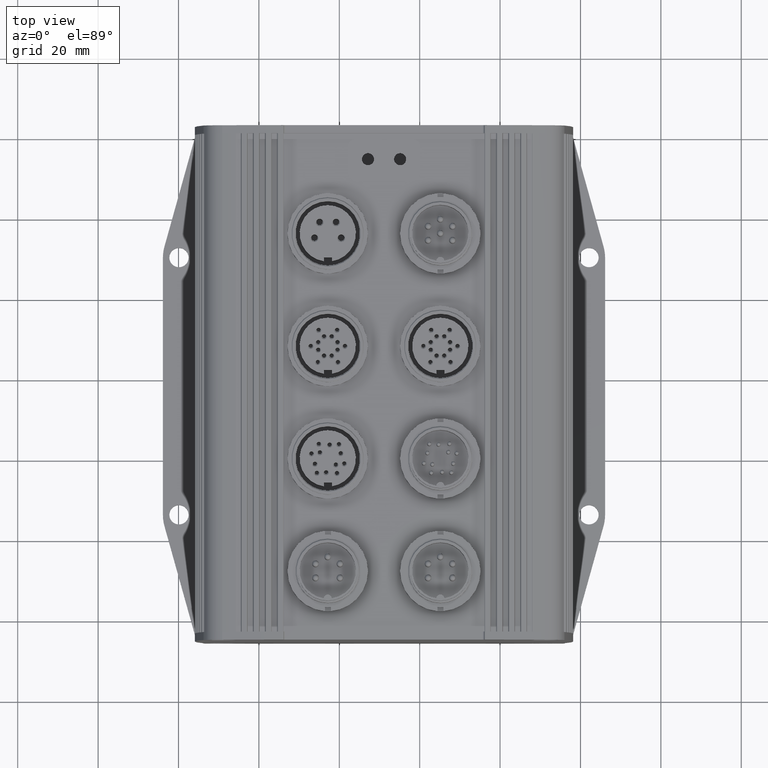
[diagram: clean part render]
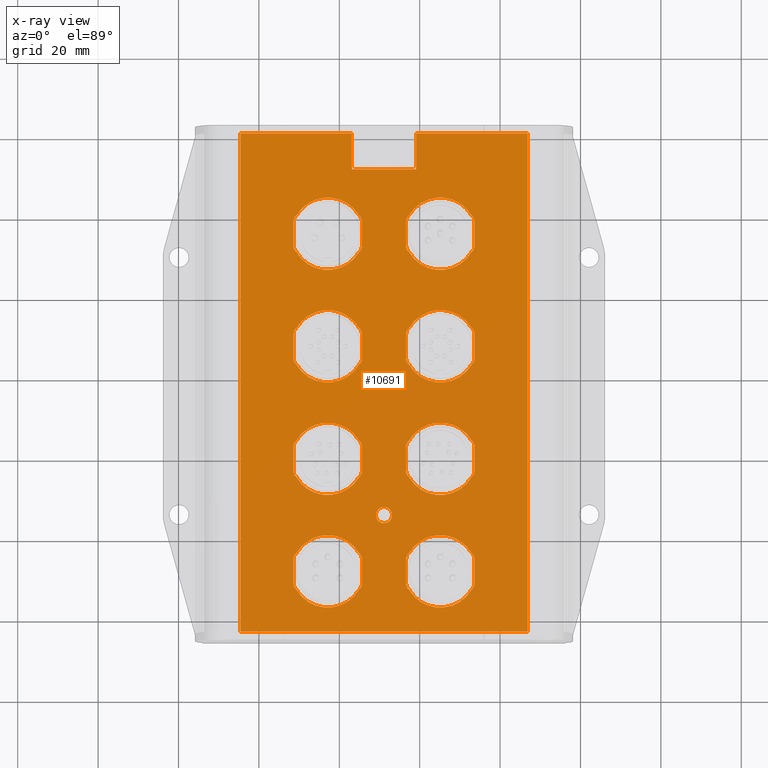
[diagram: x-ray — body ghosted, one internal face saturated and labeled with its STEP entity id]
A machine part, top view, then the same camera in x-ray: the body is ghosted and one INTERNAL B-rep face — a face not visible from any outside direction — is saturated and labeled: STEP entity #10691.
In plain terms, the highlighted planar face has unit normal (0, 0, 1).
Its self-contained STEP definition (entity closure, byte-faithful):
#967=CARTESIAN_POINT('',(-2.0,-19.999999999999972,27.049533612553901));
#968=VERTEX_POINT('',#967);
#984=CARTESIAN_POINT('',(2.0,-19.999999999999972,27.049533612553901));
#985=VERTEX_POINT('',#984);
#992=CARTESIAN_POINT('',(0.0,-19.999999999999972,27.049533612553901));
#993=DIRECTION('',(0.0,0.0,1.0));
#994=DIRECTION('',(-1.0,0.0,0.0));
#995=AXIS2_PLACEMENT_3D('',#992,#993,#994);
#996=CIRCLE('',#995,2.0);
#997=EDGE_CURVE('',#968,#985,#996,.T.);
#1008=CARTESIAN_POINT('',(0.0,-19.999999999999972,27.049533612553901));
#1009=DIRECTION('',(0.0,0.0,1.0));
#1010=DIRECTION('',(-1.0,0.0,0.0));
#1011=AXIS2_PLACEMENT_3D('',#1008,#1009,#1010);
#1012=CIRCLE('',#1011,2.0);
#1013=EDGE_CURVE('',#985,#968,#1012,.T.);
#1031=CARTESIAN_POINT('',(6.233730823893669,-29.451916548230358,27.049533612553901));
#1032=VERTEX_POINT('',#1031);
#1033=CARTESIAN_POINT('',(5.499999999999982,-31.0,27.049533612553901));
#1034=VERTEX_POINT('',#1033);
#1035=CARTESIAN_POINT('',(7.499999999999982,-31.0,27.049533612553901));
#1036=DIRECTION('',(0.0,0.0,1.0));
#1037=DIRECTION('',(1.0,0.0,0.0));
#1038=AXIS2_PLACEMENT_3D('',#1035,#1036,#1037);
#1039=CIRCLE('',#1038,2.0);
#1040=EDGE_CURVE('',#1032,#1034,#1039,.T.);
#1073=CARTESIAN_POINT('',(5.499999999999982,-37.0,27.049533612553901));
#1074=VERTEX_POINT('',#1073);
#1075=CARTESIAN_POINT('',(5.499999999999982,-31.0,27.049533612553901));
#1076=DIRECTION('',(0.0,-1.0,0.0));
#1077=VECTOR('',#1076,6.0);
#1078=LINE('',#1075,#1077);
#1079=EDGE_CURVE('',#1034,#1074,#1078,.T.);
#1104=CARTESIAN_POINT('',(6.233730823893669,-38.548083451769656,27.049533612553901));
#1105=VERTEX_POINT('',#1104);
#1106=CARTESIAN_POINT('',(7.499999999999982,-37.0,27.049533612553901));
#1107=DIRECTION('',(0.0,0.0,1.0));
#1108=DIRECTION('',(1.0,0.0,0.0));
#1109=AXIS2_PLACEMENT_3D('',#1106,#1107,#1108);
#1110=CIRCLE('',#1109,2.0);
#1111=EDGE_CURVE('',#1074,#1105,#1110,.T.);
#1137=CARTESIAN_POINT('',(21.766269176106302,-38.548083451769642,27.049533612553901));
#1138=VERTEX_POINT('',#1137);
#1139=CARTESIAN_POINT('',(13.999999999999982,-34.0,27.049533612553901));
#1140=DIRECTION('',(0.0,0.0,1.0));
#1141=DIRECTION('',(1.0,0.0,0.0));
#1142=AXIS2_PLACEMENT_3D('',#1139,#1140,#1141);
#1143=CIRCLE('',#1142,9.0);
#1144=EDGE_CURVE('',#1105,#1138,#1143,.T.);
#1170=CARTESIAN_POINT('',(22.499999999999982,-37.0,27.049533612553901));
#1171=VERTEX_POINT('',#1170);
#1172=CARTESIAN_POINT('',(20.499999999999982,-37.0,27.049533612553901));
#1173=DIRECTION('',(0.0,0.0,1.0));
#1174=DIRECTION('',(1.0,0.0,0.0));
#1175=AXIS2_PLACEMENT_3D('',#1172,#1173,#1174);
#1176=CIRCLE('',#1175,2.0);
#1177=EDGE_CURVE('',#1138,#1171,#1176,.T.);
#1203=CARTESIAN_POINT('',(22.499999999999982,-31.0,27.049533612553901));
#1204=VERTEX_POINT('',#1203);
#1205=CARTESIAN_POINT('',(22.499999999999982,-37.0,27.049533612553901));
#1206=DIRECTION('',(0.0,1.0,0.0));
#1207=VECTOR('',#1206,6.0);
#1208=LINE('',#1205,#1207);
#1209=EDGE_CURVE('',#1171,#1204,#1208,.T.);
#1234=CARTESIAN_POINT('',(21.766269176106295,-29.451916548230344,27.049533612553901));
#1235=VERTEX_POINT('',#1234);
#1236=CARTESIAN_POINT('',(20.499999999999982,-31.0,27.049533612553901));
#1237=DIRECTION('',(0.0,0.0,1.0));
#1238=DIRECTION('',(1.0,0.0,0.0));
#1239=AXIS2_PLACEMENT_3D('',#1236,#1237,#1238);
#1240=CIRCLE('',#1239,2.0);
#1241=EDGE_CURVE('',#1204,#1235,#1240,.T.);
#1267=CARTESIAN_POINT('',(13.999999999999982,-34.0,27.049533612553901));
#1268=DIRECTION('',(0.0,0.0,1.0));
#1269=DIRECTION('',(1.0,0.0,0.0));
#1270=AXIS2_PLACEMENT_3D('',#1267,#1268,#1269);
#1271=CIRCLE('',#1270,9.0);
#1272=EDGE_CURVE('',#1235,#1032,#1271,.T.);
#1291=CARTESIAN_POINT('',(-21.766269176106331,-29.451916548230358,27.049533612553901));
#1292=VERTEX_POINT('',#1291);
#1293=CARTESIAN_POINT('',(-22.500000000000018,-31.0,27.049533612553901));
#1294=VERTEX_POINT('',#1293);
#1295=CARTESIAN_POINT('',(-20.500000000000018,-31.0,27.049533612553901));
#1296=DIRECTION('',(0.0,0.0,1.0));
#1297=DIRECTION('',(1.0,0.0,0.0));
#1298=AXIS2_PLACEMENT_3D('',#1295,#1296,#1297);
#1299=CIRCLE('',#1298,2.0);
#1300=EDGE_CURVE('',#1292,#1294,#1299,.T.);
#1333=CARTESIAN_POINT('',(-22.500000000000018,-37.0,27.049533612553901));
#1334=VERTEX_POINT('',#1333);
#1335=CARTESIAN_POINT('',(-22.500000000000018,-31.0,27.049533612553901));
#1336=DIRECTION('',(0.0,-1.0,0.0));
#1337=VECTOR('',#1336,6.0);
#1338=LINE('',#1335,#1337);
#1339=EDGE_CURVE('',#1294,#1334,#1338,.T.);
#1364=CARTESIAN_POINT('',(-21.766269176106331,-38.548083451769656,27.049533612553901));
#1365=VERTEX_POINT('',#1364);
#1366=CARTESIAN_POINT('',(-20.500000000000018,-37.0,27.049533612553901));
#1367=DIRECTION('',(0.0,0.0,1.0));
#1368=DIRECTION('',(1.0,0.0,0.0));
#1369=AXIS2_PLACEMENT_3D('',#1366,#1367,#1368);
#1370=CIRCLE('',#1369,2.0);
#1371=EDGE_CURVE('',#1334,#1365,#1370,.T.);
#1397=CARTESIAN_POINT('',(-6.233730823893699,-38.548083451769642,27.049533612553901));
#1398=VERTEX_POINT('',#1397);
#1399=CARTESIAN_POINT('',(-14.000000000000018,-34.0,27.049533612553901));
#1400=DIRECTION('',(0.0,0.0,1.0));
#1401=DIRECTION('',(1.0,0.0,0.0));
#1402=AXIS2_PLACEMENT_3D('',#1399,#1400,#1401);
#1403=CIRCLE('',#1402,9.0);
#1404=EDGE_CURVE('',#1365,#1398,#1403,.T.);
#1430=CARTESIAN_POINT('',(-5.500000000000019,-37.0,27.049533612553901));
#1431=VERTEX_POINT('',#1430);
#1432=CARTESIAN_POINT('',(-7.500000000000019,-37.0,27.049533612553901));
#1433=DIRECTION('',(0.0,0.0,1.0));
#1434=DIRECTION('',(1.0,0.0,0.0));
#1435=AXIS2_PLACEMENT_3D('',#1432,#1433,#1434);
#1436=CIRCLE('',#1435,2.0);
#1437=EDGE_CURVE('',#1398,#1431,#1436,.T.);
#1463=CARTESIAN_POINT('',(-5.500000000000019,-31.0,27.049533612553901));
#1464=VERTEX_POINT('',#1463);
#1465=CARTESIAN_POINT('',(-5.500000000000019,-37.0,27.049533612553901));
#1466=DIRECTION('',(0.0,1.0,0.0));
#1467=VECTOR('',#1466,6.0);
#1468=LINE('',#1465,#1467);
#1469=EDGE_CURVE('',#1431,#1464,#1468,.T.);
#1494=CARTESIAN_POINT('',(-6.233730823893706,-29.451916548230344,27.049533612553901));
#1495=VERTEX_POINT('',#1494);
#1496=CARTESIAN_POINT('',(-7.500000000000019,-31.0,27.049533612553901));
#1497=DIRECTION('',(0.0,0.0,1.0));
#1498=DIRECTION('',(1.0,0.0,0.0));
#1499=AXIS2_PLACEMENT_3D('',#1496,#1497,#1498);
#1500=CIRCLE('',#1499,2.0);
#1501=EDGE_CURVE('',#1464,#1495,#1500,.T.);
#1527=CARTESIAN_POINT('',(-14.000000000000018,-34.0,27.049533612553901));
#1528=DIRECTION('',(0.0,0.0,1.0));
#1529=DIRECTION('',(1.0,0.0,0.0));
#1530=AXIS2_PLACEMENT_3D('',#1527,#1528,#1529);
#1531=CIRCLE('',#1530,9.0);
#1532=EDGE_CURVE('',#1495,#1292,#1531,.T.);
#1551=CARTESIAN_POINT('',(6.233730823893673,-1.451916548230358,27.049533612553901));
#1552=VERTEX_POINT('',#1551);
#1553=CARTESIAN_POINT('',(5.499999999999986,-3.0,27.049533612553901));
#1554=VERTEX_POINT('',#1553);
#1555=CARTESIAN_POINT('',(7.499999999999986,-3.0,27.049533612553901));
#1556=DIRECTION('',(0.0,0.0,1.0));
#1557=DIRECTION('',(1.0,0.0,0.0));
#1558=AXIS2_PLACEMENT_3D('',#1555,#1556,#1557);
#1559=CIRCLE('',#1558,2.0);
#1560=EDGE_CURVE('',#1552,#1554,#1559,.T.);
#1593=CARTESIAN_POINT('',(5.499999999999986,-9.0,27.049533612553901));
#1594=VERTEX_POINT('',#1593);
#1595=CARTESIAN_POINT('',(5.499999999999986,-3.0,27.049533612553901));
#1596=DIRECTION('',(0.0,-1.0,0.0));
#1597=VECTOR('',#1596,6.0);
#1598=LINE('',#1595,#1597);
#1599=EDGE_CURVE('',#1554,#1594,#1598,.T.);
#1624=CARTESIAN_POINT('',(6.233730823893673,-10.548083451769656,27.049533612553901));
#1625=VERTEX_POINT('',#1624);
#1626=CARTESIAN_POINT('',(7.499999999999986,-9.0,27.049533612553901));
#1627=DIRECTION('',(0.0,0.0,1.0));
#1628=DIRECTION('',(1.0,0.0,0.0));
#1629=AXIS2_PLACEMENT_3D('',#1626,#1627,#1628);
#1630=CIRCLE('',#1629,2.0);
#1631=EDGE_CURVE('',#1594,#1625,#1630,.T.);
#1657=CARTESIAN_POINT('',(21.766269176106306,-10.548083451769642,27.049533612553901));
#1658=VERTEX_POINT('',#1657);
#1659=CARTESIAN_POINT('',(13.999999999999986,-6.0,27.049533612553901));
#1660=DIRECTION('',(0.0,0.0,1.0));
#1661=DIRECTION('',(1.0,0.0,0.0));
#1662=AXIS2_PLACEMENT_3D('',#1659,#1660,#1661);
#1663=CIRCLE('',#1662,9.0);
#1664=EDGE_CURVE('',#1625,#1658,#1663,.T.);
#1690=CARTESIAN_POINT('',(22.499999999999986,-9.0,27.049533612553901));
#1691=VERTEX_POINT('',#1690);
#1692=CARTESIAN_POINT('',(20.499999999999986,-9.0,27.049533612553901));
#1693=DIRECTION('',(0.0,0.0,1.0));
#1694=DIRECTION('',(1.0,0.0,0.0));
#1695=AXIS2_PLACEMENT_3D('',#1692,#1693,#1694);
#1696=CIRCLE('',#1695,2.0);
#1697=EDGE_CURVE('',#1658,#1691,#1696,.T.);
#1723=CARTESIAN_POINT('',(22.499999999999986,-3.0,27.049533612553901));
#1724=VERTEX_POINT('',#1723);
#1725=CARTESIAN_POINT('',(22.499999999999986,-9.0,27.049533612553901));
#1726=DIRECTION('',(0.0,1.0,0.0));
#1727=VECTOR('',#1726,6.0);
#1728=LINE('',#1725,#1727);
#1729=EDGE_CURVE('',#1691,#1724,#1728,.T.);
#1754=CARTESIAN_POINT('',(21.766269176106299,-1.451916548230344,27.049533612553901));
#1755=VERTEX_POINT('',#1754);
#1756=CARTESIAN_POINT('',(20.499999999999986,-3.0,27.049533612553901));
#1757=DIRECTION('',(0.0,0.0,1.0));
#1758=DIRECTION('',(1.0,0.0,0.0));
#1759=AXIS2_PLACEMENT_3D('',#1756,#1757,#1758);
#1760=CIRCLE('',#1759,2.0);
#1761=EDGE_CURVE('',#1724,#1755,#1760,.T.);
#1787=CARTESIAN_POINT('',(13.999999999999986,-6.0,27.049533612553901));
#1788=DIRECTION('',(0.0,0.0,1.0));
#1789=DIRECTION('',(1.0,0.0,0.0));
#1790=AXIS2_PLACEMENT_3D('',#1787,#1788,#1789);
#1791=CIRCLE('',#1790,9.0);
#1792=EDGE_CURVE('',#1755,#1552,#1791,.T.);
#1811=CARTESIAN_POINT('',(-21.766269176106327,-1.451916548230358,27.049533612553901));
#1812=VERTEX_POINT('',#1811);
#1813=CARTESIAN_POINT('',(-22.500000000000014,-3.0,27.049533612553901));
#1814=VERTEX_POINT('',#1813);
#1815=CARTESIAN_POINT('',(-20.500000000000014,-3.0,27.049533612553901));
#1816=DIRECTION('',(0.0,0.0,1.0));
#1817=DIRECTION('',(1.0,0.0,0.0));
#1818=AXIS2_PLACEMENT_3D('',#1815,#1816,#1817);
#1819=CIRCLE('',#1818,2.0);
#1820=EDGE_CURVE('',#1812,#1814,#1819,.T.);
#1853=CARTESIAN_POINT('',(-22.500000000000014,-9.0,27.049533612553901));
#1854=VERTEX_POINT('',#1853);
#1855=CARTESIAN_POINT('',(-22.500000000000014,-3.0,27.049533612553901));
#1856=DIRECTION('',(0.0,-1.0,0.0));
#1857=VECTOR('',#1856,6.0);
#1858=LINE('',#1855,#1857);
#1859=EDGE_CURVE('',#1814,#1854,#1858,.T.);
#1884=CARTESIAN_POINT('',(-21.766269176106327,-10.548083451769656,27.049533612553901));
#1885=VERTEX_POINT('',#1884);
#1886=CARTESIAN_POINT('',(-20.500000000000014,-9.0,27.049533612553901));
#1887=DIRECTION('',(0.0,0.0,1.0));
#1888=DIRECTION('',(1.0,0.0,0.0));
#1889=AXIS2_PLACEMENT_3D('',#1886,#1887,#1888);
#1890=CIRCLE('',#1889,2.0);
#1891=EDGE_CURVE('',#1854,#1885,#1890,.T.);
#1917=CARTESIAN_POINT('',(-6.233730823893692,-10.548083451769642,27.049533612553901));
#1918=VERTEX_POINT('',#1917);
#1919=CARTESIAN_POINT('',(-14.000000000000012,-6.0,27.049533612553901));
#1920=DIRECTION('',(0.0,0.0,1.0));
#1921=DIRECTION('',(1.0,0.0,0.0));
#1922=AXIS2_PLACEMENT_3D('',#1919,#1920,#1921);
#1923=CIRCLE('',#1922,9.0);
#1924=EDGE_CURVE('',#1885,#1918,#1923,.T.);
#1950=CARTESIAN_POINT('',(-5.500000000000012,-9.0,27.049533612553901));
#1951=VERTEX_POINT('',#1950);
#1952=CARTESIAN_POINT('',(-7.500000000000012,-9.0,27.049533612553901));
#1953=DIRECTION('',(0.0,0.0,1.0));
#1954=DIRECTION('',(1.0,0.0,0.0));
#1955=AXIS2_PLACEMENT_3D('',#1952,#1953,#1954);
#1956=CIRCLE('',#1955,2.0);
#1957=EDGE_CURVE('',#1918,#1951,#1956,.T.);
#1983=CARTESIAN_POINT('',(-5.500000000000012,-3.0,27.049533612553901));
#1984=VERTEX_POINT('',#1983);
#1985=CARTESIAN_POINT('',(-5.500000000000012,-9.0,27.049533612553901));
#1986=DIRECTION('',(0.0,1.0,0.0));
#1987=VECTOR('',#1986,6.0);
#1988=LINE('',#1985,#1987);
#1989=EDGE_CURVE('',#1951,#1984,#1988,.T.);
#2014=CARTESIAN_POINT('',(-6.233730823893700,-1.451916548230344,27.049533612553901));
#2015=VERTEX_POINT('',#2014);
#2016=CARTESIAN_POINT('',(-7.500000000000012,-3.0,27.049533612553901));
#2017=DIRECTION('',(0.0,0.0,1.0));
#2018=DIRECTION('',(1.0,0.0,0.0));
#2019=AXIS2_PLACEMENT_3D('',#2016,#2017,#2018);
#2020=CIRCLE('',#2019,2.0);
#2021=EDGE_CURVE('',#1984,#2015,#2020,.T.);
#2047=CARTESIAN_POINT('',(-14.000000000000012,-6.0,27.049533612553901));
#2048=DIRECTION('',(0.0,0.0,1.0));
#2049=DIRECTION('',(1.0,0.0,0.0));
#2050=AXIS2_PLACEMENT_3D('',#2047,#2048,#2049);
#2051=CIRCLE('',#2050,9.0);
#2052=EDGE_CURVE('',#2015,#1812,#2051,.T.);
#2071=CARTESIAN_POINT('',(6.233730823893680,26.548083451769642,27.049533612553901));
#2072=VERTEX_POINT('',#2071);
#2073=CARTESIAN_POINT('',(5.499999999999993,25.0,27.049533612553901));
#2074=VERTEX_POINT('',#2073);
#2075=CARTESIAN_POINT('',(7.499999999999993,25.0,27.049533612553901));
#2076=DIRECTION('',(0.0,0.0,1.0));
#2077=DIRECTION('',(1.0,0.0,0.0));
#2078=AXIS2_PLACEMENT_3D('',#2075,#2076,#2077);
#2079=CIRCLE('',#2078,2.0);
#2080=EDGE_CURVE('',#2072,#2074,#2079,.T.);
#2113=CARTESIAN_POINT('',(5.499999999999993,19.0,27.049533612553901));
#2114=VERTEX_POINT('',#2113);
#2115=CARTESIAN_POINT('',(5.499999999999993,25.0,27.049533612553901));
#2116=DIRECTION('',(0.0,-1.0,0.0));
#2117=VECTOR('',#2116,6.0);
#2118=LINE('',#2115,#2117);
#2119=EDGE_CURVE('',#2074,#2114,#2118,.T.);
#2144=CARTESIAN_POINT('',(6.233730823893680,17.451916548230344,27.049533612553901));
#2145=VERTEX_POINT('',#2144);
#2146=CARTESIAN_POINT('',(7.499999999999993,19.0,27.049533612553901));
#2147=DIRECTION('',(0.0,0.0,1.0));
#2148=DIRECTION('',(1.0,0.0,0.0));
#2149=AXIS2_PLACEMENT_3D('',#2146,#2147,#2148);
#2150=CIRCLE('',#2149,2.0);
#2151=EDGE_CURVE('',#2114,#2145,#2150,.T.);
#2177=CARTESIAN_POINT('',(21.766269176106313,17.451916548230358,27.049533612553901));
#2178=VERTEX_POINT('',#2177);
#2179=CARTESIAN_POINT('',(13.999999999999993,22.0,27.049533612553901));
#2180=DIRECTION('',(0.0,0.0,1.0));
#2181=DIRECTION('',(1.0,0.0,0.0));
#2182=AXIS2_PLACEMENT_3D('',#2179,#2180,#2181);
#2183=CIRCLE('',#2182,9.0);
#2184=EDGE_CURVE('',#2145,#2178,#2183,.T.);
#2210=CARTESIAN_POINT('',(22.499999999999993,19.0,27.049533612553901));
#2211=VERTEX_POINT('',#2210);
#2212=CARTESIAN_POINT('',(20.499999999999993,19.0,27.049533612553901));
#2213=DIRECTION('',(0.0,0.0,1.0));
#2214=DIRECTION('',(1.0,0.0,0.0));
#2215=AXIS2_PLACEMENT_3D('',#2212,#2213,#2214);
#2216=CIRCLE('',#2215,2.0);
#2217=EDGE_CURVE('',#2178,#2211,#2216,.T.);
#2243=CARTESIAN_POINT('',(22.499999999999993,25.0,27.049533612553901));
#2244=VERTEX_POINT('',#2243);
#2245=CARTESIAN_POINT('',(22.499999999999993,19.0,27.049533612553901));
#2246=DIRECTION('',(0.0,1.0,0.0));
#2247=VECTOR('',#2246,6.0);
#2248=LINE('',#2245,#2247);
#2249=EDGE_CURVE('',#2211,#2244,#2248,.T.);
#2274=CARTESIAN_POINT('',(21.766269176106306,26.548083451769656,27.049533612553901));
#2275=VERTEX_POINT('',#2274);
#2276=CARTESIAN_POINT('',(20.499999999999993,25.0,27.049533612553901));
#2277=DIRECTION('',(0.0,0.0,1.0));
#2278=DIRECTION('',(1.0,0.0,0.0));
#2279=AXIS2_PLACEMENT_3D('',#2276,#2277,#2278);
#2280=CIRCLE('',#2279,2.0);
#2281=EDGE_CURVE('',#2244,#2275,#2280,.T.);
#2307=CARTESIAN_POINT('',(13.999999999999993,22.0,27.049533612553901));
#2308=DIRECTION('',(0.0,0.0,1.0));
#2309=DIRECTION('',(1.0,0.0,0.0));
#2310=AXIS2_PLACEMENT_3D('',#2307,#2308,#2309);
#2311=CIRCLE('',#2310,9.0);
#2312=EDGE_CURVE('',#2275,#2072,#2311,.T.);
#2331=CARTESIAN_POINT('',(-21.766269176106320,26.548083451769642,27.049533612553901));
#2332=VERTEX_POINT('',#2331);
#2333=CARTESIAN_POINT('',(-22.500000000000007,25.0,27.049533612553901));
#2334=VERTEX_POINT('',#2333);
#2335=CARTESIAN_POINT('',(-20.500000000000007,25.0,27.049533612553901));
#2336=DIRECTION('',(0.0,0.0,1.0));
#2337=DIRECTION('',(1.0,0.0,0.0));
#2338=AXIS2_PLACEMENT_3D('',#2335,#2336,#2337);
#2339=CIRCLE('',#2338,2.0);
#2340=EDGE_CURVE('',#2332,#2334,#2339,.T.);
#2373=CARTESIAN_POINT('',(-22.500000000000007,19.0,27.049533612553901));
#2374=VERTEX_POINT('',#2373);
#2375=CARTESIAN_POINT('',(-22.500000000000007,25.0,27.049533612553901));
#2376=DIRECTION('',(0.0,-1.0,0.0));
#2377=VECTOR('',#2376,6.0);
#2378=LINE('',#2375,#2377);
#2379=EDGE_CURVE('',#2334,#2374,#2378,.T.);
#2404=CARTESIAN_POINT('',(-21.766269176106320,17.451916548230344,27.049533612553901));
#2405=VERTEX_POINT('',#2404);
#2406=CARTESIAN_POINT('',(-20.500000000000007,19.0,27.049533612553901));
#2407=DIRECTION('',(0.0,0.0,1.0));
#2408=DIRECTION('',(1.0,0.0,0.0));
#2409=AXIS2_PLACEMENT_3D('',#2406,#2407,#2408);
#2410=CIRCLE('',#2409,2.0);
#2411=EDGE_CURVE('',#2374,#2405,#2410,.T.);
#2437=CARTESIAN_POINT('',(-6.233730823893686,17.451916548230358,27.049533612553901));
#2438=VERTEX_POINT('',#2437);
#2439=CARTESIAN_POINT('',(-14.000000000000007,22.0,27.049533612553901));
#2440=DIRECTION('',(0.0,0.0,1.0));
#2441=DIRECTION('',(1.0,0.0,0.0));
#2442=AXIS2_PLACEMENT_3D('',#2439,#2440,#2441);
#2443=CIRCLE('',#2442,9.0);
#2444=EDGE_CURVE('',#2405,#2438,#2443,.T.);
#2470=CARTESIAN_POINT('',(-5.500000000000006,19.0,27.049533612553901));
#2471=VERTEX_POINT('',#2470);
#2472=CARTESIAN_POINT('',(-7.500000000000006,19.0,27.049533612553901));
#2473=DIRECTION('',(0.0,0.0,1.0));
#2474=DIRECTION('',(1.0,0.0,0.0));
#2475=AXIS2_PLACEMENT_3D('',#2472,#2473,#2474);
#2476=CIRCLE('',#2475,2.0);
#2477=EDGE_CURVE('',#2438,#2471,#2476,.T.);
#2503=CARTESIAN_POINT('',(-5.500000000000006,25.0,27.049533612553901));
#2504=VERTEX_POINT('',#2503);
#2505=CARTESIAN_POINT('',(-5.500000000000006,19.0,27.049533612553901));
#2506=DIRECTION('',(0.0,1.0,0.0));
#2507=VECTOR('',#2506,6.0);
#2508=LINE('',#2505,#2507);
#2509=EDGE_CURVE('',#2471,#2504,#2508,.T.);
#2534=CARTESIAN_POINT('',(-6.233730823893693,26.548083451769656,27.049533612553901));
#2535=VERTEX_POINT('',#2534);
#2536=CARTESIAN_POINT('',(-7.500000000000006,25.0,27.049533612553901));
#2537=DIRECTION('',(0.0,0.0,1.0));
#2538=DIRECTION('',(1.0,0.0,0.0));
#2539=AXIS2_PLACEMENT_3D('',#2536,#2537,#2538);
#2540=CIRCLE('',#2539,2.0);
#2541=EDGE_CURVE('',#2504,#2535,#2540,.T.);
#2567=CARTESIAN_POINT('',(-14.000000000000007,22.0,27.049533612553901));
#2568=DIRECTION('',(0.0,0.0,1.0));
#2569=DIRECTION('',(1.0,0.0,0.0));
#2570=AXIS2_PLACEMENT_3D('',#2567,#2568,#2569);
#2571=CIRCLE('',#2570,9.0);
#2572=EDGE_CURVE('',#2535,#2332,#2571,.T.);
#2591=CARTESIAN_POINT('',(6.233730823893687,54.548083451769642,27.049533612553901));
#2592=VERTEX_POINT('',#2591);
#2593=CARTESIAN_POINT('',(5.500000000000000,53.0,27.049533612553901));
#2594=VERTEX_POINT('',#2593);
#2595=CARTESIAN_POINT('',(7.500000000000000,53.0,27.049533612553901));
#2596=DIRECTION('',(0.0,0.0,1.0));
#2597=DIRECTION('',(1.0,0.0,0.0));
#2598=AXIS2_PLACEMENT_3D('',#2595,#2596,#2597);
#2599=CIRCLE('',#2598,2.0);
#2600=EDGE_CURVE('',#2592,#2594,#2599,.T.);
#2633=CARTESIAN_POINT('',(5.500000000000000,47.0,27.049533612553901));
#2634=VERTEX_POINT('',#2633);
#2635=CARTESIAN_POINT('',(5.500000000000000,53.0,27.049533612553901));
#2636=DIRECTION('',(0.0,-1.0,0.0));
#2637=VECTOR('',#2636,6.0);
#2638=LINE('',#2635,#2637);
#2639=EDGE_CURVE('',#2594,#2634,#2638,.T.);
#2664=CARTESIAN_POINT('',(6.233730823893687,45.451916548230344,27.049533612553901));
#2665=VERTEX_POINT('',#2664);
#2666=CARTESIAN_POINT('',(7.500000000000000,47.0,27.049533612553901));
#2667=DIRECTION('',(0.0,0.0,1.0));
#2668=DIRECTION('',(1.0,0.0,0.0));
#2669=AXIS2_PLACEMENT_3D('',#2666,#2667,#2668);
#2670=CIRCLE('',#2669,2.0);
#2671=EDGE_CURVE('',#2634,#2665,#2670,.T.);
#2697=CARTESIAN_POINT('',(21.766269176106320,45.451916548230358,27.049533612553901));
#2698=VERTEX_POINT('',#2697);
#2699=CARTESIAN_POINT('',(14.0,50.0,27.049533612553901));
#2700=DIRECTION('',(0.0,0.0,1.0));
#2701=DIRECTION('',(1.0,0.0,0.0));
#2702=AXIS2_PLACEMENT_3D('',#2699,#2700,#2701);
#2703=CIRCLE('',#2702,9.0);
#2704=EDGE_CURVE('',#2665,#2698,#2703,.T.);
#2730=CARTESIAN_POINT('',(22.500000000000000,47.0,27.049533612553901));
#2731=VERTEX_POINT('',#2730);
#2732=CARTESIAN_POINT('',(20.500000000000000,47.0,27.049533612553901));
#2733=DIRECTION('',(0.0,0.0,1.0));
#2734=DIRECTION('',(1.0,0.0,0.0));
#2735=AXIS2_PLACEMENT_3D('',#2732,#2733,#2734);
#2736=CIRCLE('',#2735,2.0);
#2737=EDGE_CURVE('',#2698,#2731,#2736,.T.);
#2763=CARTESIAN_POINT('',(22.500000000000000,53.0,27.049533612553901));
#2764=VERTEX_POINT('',#2763);
#2765=CARTESIAN_POINT('',(22.500000000000000,47.0,27.049533612553901));
#2766=DIRECTION('',(0.0,1.0,0.0));
#2767=VECTOR('',#2766,6.0);
#2768=LINE('',#2765,#2767);
#2769=EDGE_CURVE('',#2731,#2764,#2768,.T.);
#2794=CARTESIAN_POINT('',(21.766269176106313,54.548083451769656,27.049533612553901));
#2795=VERTEX_POINT('',#2794);
#2796=CARTESIAN_POINT('',(20.500000000000000,53.0,27.049533612553901));
#2797=DIRECTION('',(0.0,0.0,1.0));
#2798=DIRECTION('',(1.0,0.0,0.0));
#2799=AXIS2_PLACEMENT_3D('',#2796,#2797,#2798);
#2800=CIRCLE('',#2799,2.0);
#2801=EDGE_CURVE('',#2764,#2795,#2800,.T.);
#2827=CARTESIAN_POINT('',(14.0,50.0,27.049533612553901));
#2828=DIRECTION('',(0.0,0.0,1.0));
#2829=DIRECTION('',(1.0,0.0,0.0));
#2830=AXIS2_PLACEMENT_3D('',#2827,#2828,#2829);
#2831=CIRCLE('',#2830,9.0);
#2832=EDGE_CURVE('',#2795,#2592,#2831,.T.);
#2851=CARTESIAN_POINT('',(-21.766269176106313,54.548083451769642,27.049533612553901));
#2852=VERTEX_POINT('',#2851);
#2853=CARTESIAN_POINT('',(-22.500000000000000,53.0,27.049533612553901));
#2854=VERTEX_POINT('',#2853);
#2855=CARTESIAN_POINT('',(-20.500000000000000,53.0,27.049533612553901));
#2856=DIRECTION('',(0.0,0.0,1.0));
#2857=DIRECTION('',(1.0,0.0,0.0));
#2858=AXIS2_PLACEMENT_3D('',#2855,#2856,#2857);
#2859=CIRCLE('',#2858,2.0);
#2860=EDGE_CURVE('',#2852,#2854,#2859,.T.);
#2893=CARTESIAN_POINT('',(-22.500000000000000,47.0,27.049533612553901));
#2894=VERTEX_POINT('',#2893);
#2895=CARTESIAN_POINT('',(-22.500000000000000,53.0,27.049533612553901));
#2896=DIRECTION('',(0.0,-1.0,0.0));
#2897=VECTOR('',#2896,6.0);
#2898=LINE('',#2895,#2897);
#2899=EDGE_CURVE('',#2854,#2894,#2898,.T.);
#2924=CARTESIAN_POINT('',(-21.766269176106313,45.451916548230344,27.049533612553901));
#2925=VERTEX_POINT('',#2924);
#2926=CARTESIAN_POINT('',(-20.500000000000000,47.0,27.049533612553901));
#2927=DIRECTION('',(0.0,0.0,1.0));
#2928=DIRECTION('',(1.0,0.0,0.0));
#2929=AXIS2_PLACEMENT_3D('',#2926,#2927,#2928);
#2930=CIRCLE('',#2929,2.0);
#2931=EDGE_CURVE('',#2894,#2925,#2930,.T.);
#2957=CARTESIAN_POINT('',(-6.233730823893680,45.451916548230358,27.049533612553901));
#2958=VERTEX_POINT('',#2957);
#2959=CARTESIAN_POINT('',(-14.0,50.0,27.049533612553901));
#2960=DIRECTION('',(0.0,0.0,1.0));
#2961=DIRECTION('',(1.0,0.0,0.0));
#2962=AXIS2_PLACEMENT_3D('',#2959,#2960,#2961);
#2963=CIRCLE('',#2962,9.0);
#2964=EDGE_CURVE('',#2925,#2958,#2963,.T.);
#2990=CARTESIAN_POINT('',(-5.500000000000000,47.0,27.049533612553901));
#2991=VERTEX_POINT('',#2990);
#2992=CARTESIAN_POINT('',(-7.500000000000000,47.0,27.049533612553901));
#2993=DIRECTION('',(0.0,0.0,1.0));
#2994=DIRECTION('',(1.0,0.0,0.0));
#2995=AXIS2_PLACEMENT_3D('',#2992,#2993,#2994);
#2996=CIRCLE('',#2995,2.0);
#2997=EDGE_CURVE('',#2958,#2991,#2996,.T.);
#3023=CARTESIAN_POINT('',(-5.500000000000000,53.0,27.049533612553901));
#3024=VERTEX_POINT('',#3023);
#3025=CARTESIAN_POINT('',(-5.500000000000000,47.0,27.049533612553901));
#3026=DIRECTION('',(0.0,1.0,0.0));
#3027=VECTOR('',#3026,6.0);
#3028=LINE('',#3025,#3027);
#3029=EDGE_CURVE('',#2991,#3024,#3028,.T.);
#3054=CARTESIAN_POINT('',(-6.233730823893687,54.548083451769656,27.049533612553901));
#3055=VERTEX_POINT('',#3054);
#3056=CARTESIAN_POINT('',(-7.500000000000000,53.0,27.049533612553901));
#3057=DIRECTION('',(0.0,0.0,1.0));
#3058=DIRECTION('',(1.0,0.0,0.0));
#3059=AXIS2_PLACEMENT_3D('',#3056,#3057,#3058);
#3060=CIRCLE('',#3059,2.0);
#3061=EDGE_CURVE('',#3024,#3055,#3060,.T.);
#3087=CARTESIAN_POINT('',(-14.0,50.0,27.049533612553901));
#3088=DIRECTION('',(0.0,0.0,1.0));
#3089=DIRECTION('',(1.0,0.0,0.0));
#3090=AXIS2_PLACEMENT_3D('',#3087,#3088,#3089);
#3091=CIRCLE('',#3090,9.0);
#3092=EDGE_CURVE('',#3055,#2852,#3091,.T.);
#3111=CARTESIAN_POINT('',(-7.984313483298442,66.000000000000014,27.049533612553901));
#3112=VERTEX_POINT('',#3111);
#3122=CARTESIAN_POINT('',(-7.984313483298442,75.000000000000028,27.049533612553901));
#3123=VERTEX_POINT('',#3122);
#3124=CARTESIAN_POINT('',(-7.984313483298442,75.000000000000028,27.049533612553901));
#3125=DIRECTION('',(0.0,-1.0,0.0));
#3126=VECTOR('',#3125,9.000000000000014);
#3127=LINE('',#3124,#3126);
#3128=EDGE_CURVE('',#3123,#3112,#3127,.T.);
#3204=CARTESIAN_POINT('',(7.984313483298443,66.000000000000014,27.049533612553901));
#3205=VERTEX_POINT('',#3204);
#3214=CARTESIAN_POINT('',(7.984313483298443,75.000000000000028,27.049533612553901));
#3215=VERTEX_POINT('',#3214);
#3223=CARTESIAN_POINT('',(7.984313483298443,66.000000000000014,27.049533612553901));
#3224=DIRECTION('',(0.0,1.0,0.0));
#3225=VECTOR('',#3224,9.000000000000014);
#3226=LINE('',#3223,#3225);
#3227=EDGE_CURVE('',#3205,#3215,#3226,.T.);
#3240=CARTESIAN_POINT('',(-7.984313483298442,66.000000000000014,27.049533612553901));
#3241=DIRECTION('',(1.0,0.0,0.0));
#3242=VECTOR('',#3241,15.968626966596885);
#3243=LINE('',#3240,#3242);
#3244=EDGE_CURVE('',#3112,#3205,#3243,.T.);
#4739=CARTESIAN_POINT('',(-35.750000000000000,75.000000000000028,27.049533612553901));
#4740=VERTEX_POINT('',#4739);
#4741=CARTESIAN_POINT('',(-7.984313483298442,75.000000000000028,27.049533612553901));
#4742=DIRECTION('',(-1.0,0.0,0.0));
#4743=VECTOR('',#4742,27.765686516701557);
#4744=LINE('',#4741,#4743);
#4745=EDGE_CURVE('',#3123,#4740,#4744,.T.);
#5598=CARTESIAN_POINT('',(35.750000000000000,75.000000000000028,27.049533612553901));
#5599=VERTEX_POINT('',#5598);
#5607=CARTESIAN_POINT('',(35.750000000000000,75.000000000000028,27.049533612553901));
#5608=DIRECTION('',(-1.0,0.0,0.0));
#5609=VECTOR('',#5608,27.765686516701557);
#5610=LINE('',#5607,#5609);
#5611=EDGE_CURVE('',#5599,#3215,#5610,.T.);
#8179=CARTESIAN_POINT('',(-35.750000000000000,-48.999999999999972,27.049533612553901));
#8180=VERTEX_POINT('',#8179);
#8188=CARTESIAN_POINT('',(35.750000000000000,-48.999999999999972,27.049533612553901));
#8189=VERTEX_POINT('',#8188);
#8190=CARTESIAN_POINT('',(-35.750000000000000,-48.999999999999972,27.049533612553901));
#8191=DIRECTION('',(1.0,0.0,0.0));
#8192=VECTOR('',#8191,71.500000000000000);
#8193=LINE('',#8190,#8192);
#8194=EDGE_CURVE('',#8180,#8189,#8193,.T.);
#10571=CARTESIAN_POINT('',(-35.750000000000000,75.000000000000028,27.049533612553901));
#10572=DIRECTION('',(0.0,-1.0,0.0));
#10573=VECTOR('',#10572,124.0);
#10574=LINE('',#10571,#10573);
#10575=EDGE_CURVE('',#4740,#8180,#10574,.T.);
#10587=CARTESIAN_POINT('',(-37.750000000000000,75.0,27.049533612553901));
#10588=DIRECTION('',(0.0,0.0,1.0));
#10589=DIRECTION('',(1.0,0.0,0.0));
#10590=AXIS2_PLACEMENT_3D('',#10587,#10588,#10589);
#10591=PLANE('',#10590);
#10592=ORIENTED_EDGE('',*,*,#3227,.T.);
#10593=ORIENTED_EDGE('',*,*,#5611,.F.);
#10594=CARTESIAN_POINT('',(35.750000000000000,-48.999999999999972,27.049533612553901));
#10595=DIRECTION('',(0.0,1.0,0.0));
#10596=VECTOR('',#10595,124.0);
#10597=LINE('',#10594,#10596);
#10598=EDGE_CURVE('',#8189,#5599,#10597,.T.);
#10599=ORIENTED_EDGE('',*,*,#10598,.F.);
#10600=ORIENTED_EDGE('',*,*,#8194,.F.);
#10601=ORIENTED_EDGE('',*,*,#10575,.F.);
#10602=ORIENTED_EDGE('',*,*,#4745,.F.);
#10603=ORIENTED_EDGE('',*,*,#3128,.T.);
#10604=ORIENTED_EDGE('',*,*,#3244,.T.);
#10605=EDGE_LOOP('',(#10592,#10593,#10599,#10600,#10601,#10602,#10603,#10604));
#10606=FACE_OUTER_BOUND('',#10605,.T.);
#10607=ORIENTED_EDGE('',*,*,#1013,.T.);
#10608=ORIENTED_EDGE('',*,*,#997,.T.);
#10609=EDGE_LOOP('',(#10607,#10608));
#10610=FACE_BOUND('',#10609,.T.);
#10611=ORIENTED_EDGE('',*,*,#1177,.T.);
#10612=ORIENTED_EDGE('',*,*,#1209,.T.);
#10613=ORIENTED_EDGE('',*,*,#1241,.T.);
#10614=ORIENTED_EDGE('',*,*,#1272,.T.);
#10615=ORIENTED_EDGE('',*,*,#1040,.T.);
#10616=ORIENTED_EDGE('',*,*,#1079,.T.);
#10617=ORIENTED_EDGE('',*,*,#1111,.T.);
#10618=ORIENTED_EDGE('',*,*,#1144,.T.);
#10619=EDGE_LOOP('',(#10611,#10612,#10613,#10614,#10615,#10616,#10617,#10618));
#10620=FACE_BOUND('',#10619,.T.);
#10621=ORIENTED_EDGE('',*,*,#1437,.T.);
#10622=ORIENTED_EDGE('',*,*,#1469,.T.);
#10623=ORIENTED_EDGE('',*,*,#1501,.T.);
#10624=ORIENTED_EDGE('',*,*,#1532,.T.);
#10625=ORIENTED_EDGE('',*,*,#1300,.T.);
#10626=ORIENTED_EDGE('',*,*,#1339,.T.);
#10627=ORIENTED_EDGE('',*,*,#1371,.T.);
#10628=ORIENTED_EDGE('',*,*,#1404,.T.);
#10629=EDGE_LOOP('',(#10621,#10622,#10623,#10624,#10625,#10626,#10627,#10628));
#10630=FACE_BOUND('',#10629,.T.);
#10631=ORIENTED_EDGE('',*,*,#1697,.T.);
#10632=ORIENTED_EDGE('',*,*,#1729,.T.);
#10633=ORIENTED_EDGE('',*,*,#1761,.T.);
#10634=ORIENTED_EDGE('',*,*,#1792,.T.);
#10635=ORIENTED_EDGE('',*,*,#1560,.T.);
#10636=ORIENTED_EDGE('',*,*,#1599,.T.);
#10637=ORIENTED_EDGE('',*,*,#1631,.T.);
#10638=ORIENTED_EDGE('',*,*,#1664,.T.);
#10639=EDGE_LOOP('',(#10631,#10632,#10633,#10634,#10635,#10636,#10637,#10638));
#10640=FACE_BOUND('',#10639,.T.);
#10641=ORIENTED_EDGE('',*,*,#1957,.T.);
#10642=ORIENTED_EDGE('',*,*,#1989,.T.);
#10643=ORIENTED_EDGE('',*,*,#2021,.T.);
#10644=ORIENTED_EDGE('',*,*,#2052,.T.);
#10645=ORIENTED_EDGE('',*,*,#1820,.T.);
#10646=ORIENTED_EDGE('',*,*,#1859,.T.);
#10647=ORIENTED_EDGE('',*,*,#1891,.T.);
#10648=ORIENTED_EDGE('',*,*,#1924,.T.);
#10649=EDGE_LOOP('',(#10641,#10642,#10643,#10644,#10645,#10646,#10647,#10648));
#10650=FACE_BOUND('',#10649,.T.);
#10651=ORIENTED_EDGE('',*,*,#2217,.T.);
#10652=ORIENTED_EDGE('',*,*,#2249,.T.);
#10653=ORIENTED_EDGE('',*,*,#2281,.T.);
#10654=ORIENTED_EDGE('',*,*,#2312,.T.);
#10655=ORIENTED_EDGE('',*,*,#2080,.T.);
#10656=ORIENTED_EDGE('',*,*,#2119,.T.);
#10657=ORIENTED_EDGE('',*,*,#2151,.T.);
#10658=ORIENTED_EDGE('',*,*,#2184,.T.);
#10659=EDGE_LOOP('',(#10651,#10652,#10653,#10654,#10655,#10656,#10657,#10658));
#10660=FACE_BOUND('',#10659,.T.);
#10661=ORIENTED_EDGE('',*,*,#2477,.T.);
#10662=ORIENTED_EDGE('',*,*,#2509,.T.);
#10663=ORIENTED_EDGE('',*,*,#2541,.T.);
#10664=ORIENTED_EDGE('',*,*,#2572,.T.);
#10665=ORIENTED_EDGE('',*,*,#2340,.T.);
#10666=ORIENTED_EDGE('',*,*,#2379,.T.);
#10667=ORIENTED_EDGE('',*,*,#2411,.T.);
#10668=ORIENTED_EDGE('',*,*,#2444,.T.);
#10669=EDGE_LOOP('',(#10661,#10662,#10663,#10664,#10665,#10666,#10667,#10668));
#10670=FACE_BOUND('',#10669,.T.);
#10671=ORIENTED_EDGE('',*,*,#2737,.T.);
#10672=ORIENTED_EDGE('',*,*,#2769,.T.);
#10673=ORIENTED_EDGE('',*,*,#2801,.T.);
#10674=ORIENTED_EDGE('',*,*,#2832,.T.);
#10675=ORIENTED_EDGE('',*,*,#2600,.T.);
#10676=ORIENTED_EDGE('',*,*,#2639,.T.);
#10677=ORIENTED_EDGE('',*,*,#2671,.T.);
#10678=ORIENTED_EDGE('',*,*,#2704,.T.);
#10679=EDGE_LOOP('',(#10671,#10672,#10673,#10674,#10675,#10676,#10677,#10678));
#10680=FACE_BOUND('',#10679,.T.);
#10681=ORIENTED_EDGE('',*,*,#2997,.T.);
#10682=ORIENTED_EDGE('',*,*,#3029,.T.);
#10683=ORIENTED_EDGE('',*,*,#3061,.T.);
#10684=ORIENTED_EDGE('',*,*,#3092,.T.);
#10685=ORIENTED_EDGE('',*,*,#2860,.T.);
#10686=ORIENTED_EDGE('',*,*,#2899,.T.);
#10687=ORIENTED_EDGE('',*,*,#2931,.T.);
#10688=ORIENTED_EDGE('',*,*,#2964,.T.);
#10689=EDGE_LOOP('',(#10681,#10682,#10683,#10684,#10685,#10686,#10687,#10688));
#10690=FACE_BOUND('',#10689,.T.);
#10691=ADVANCED_FACE('',(#10606,#10610,#10620,#10630,#10640,#10650,#10660,#10670,#10680,#10690),#10591,.F.);